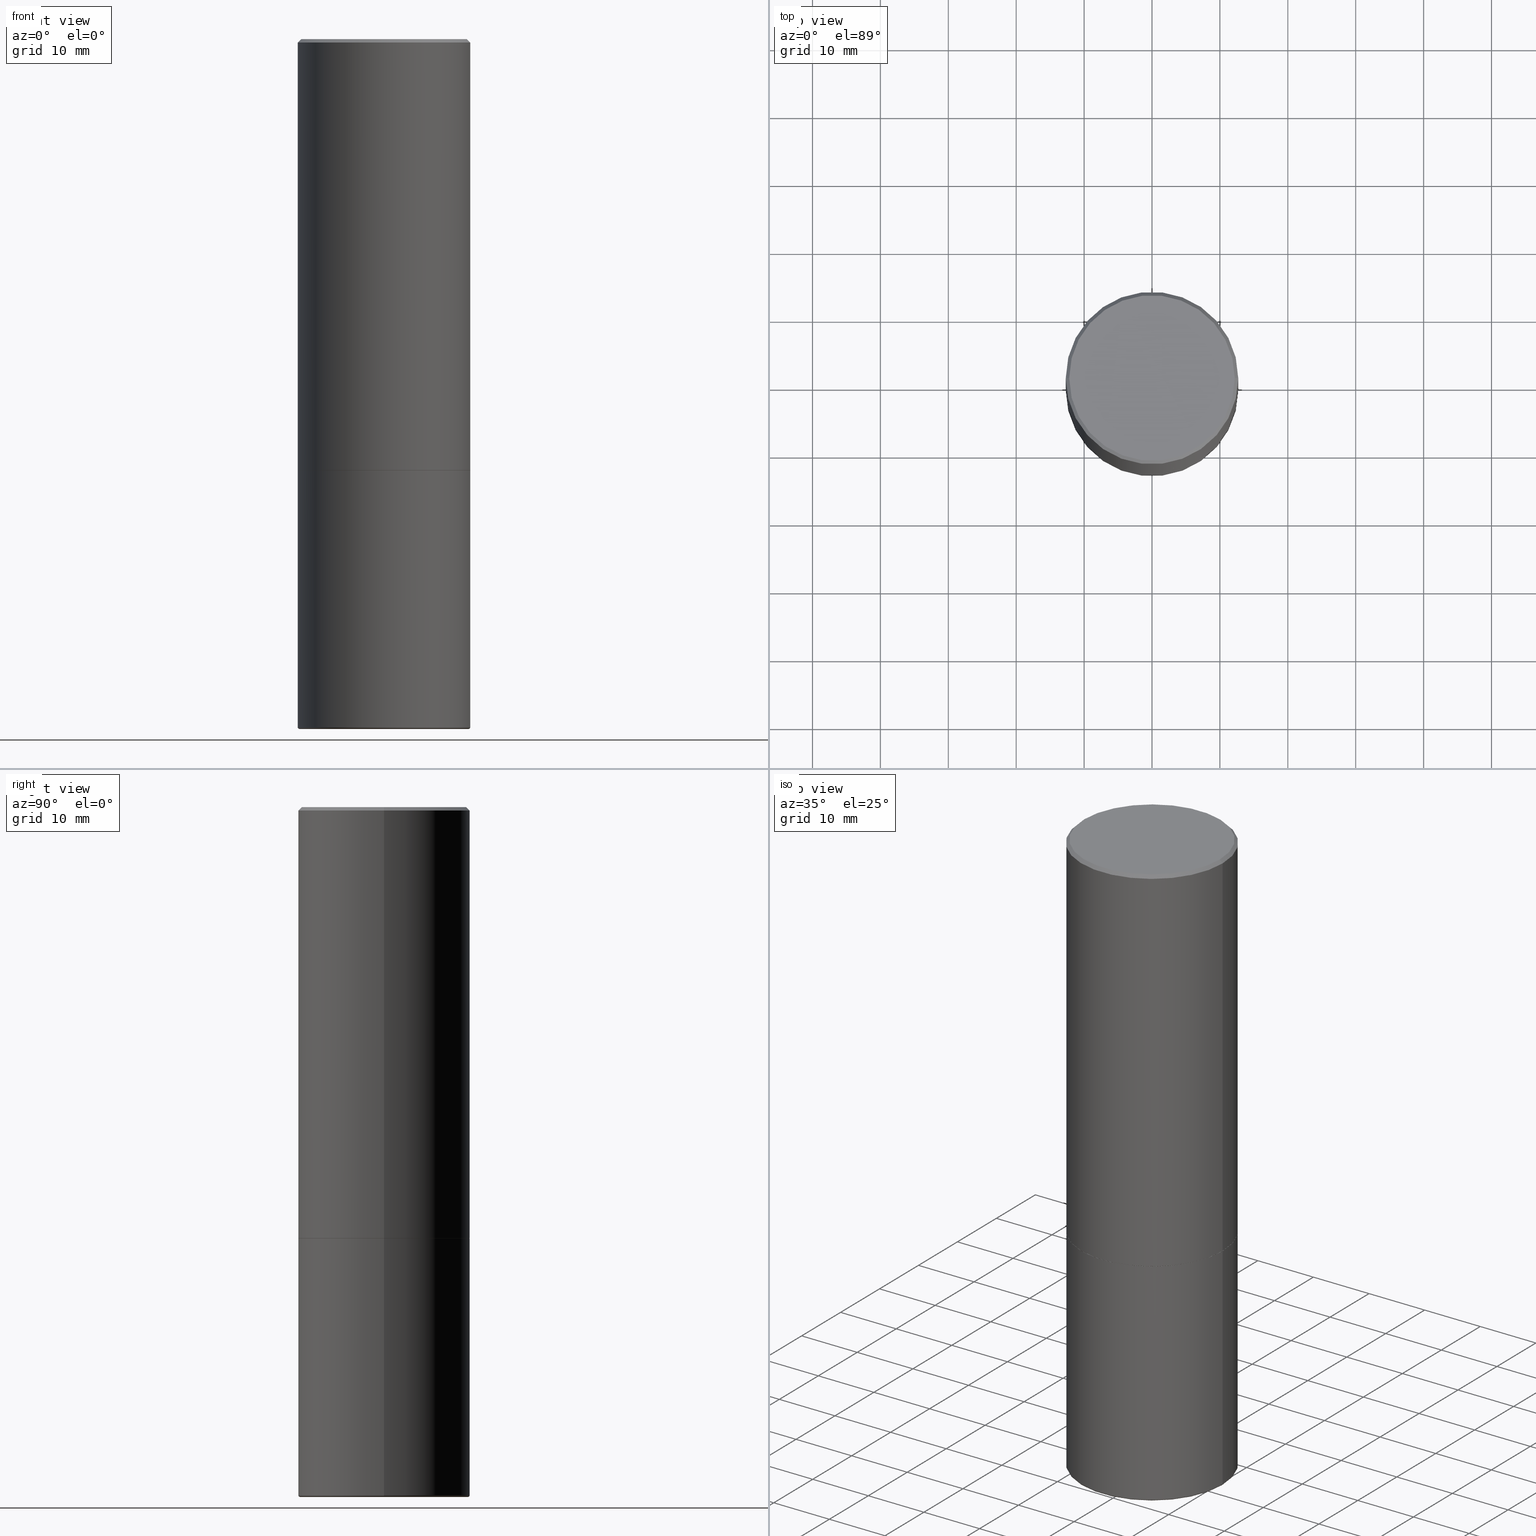
[diagram: canonical four-view strip — front | top / right | iso, engineering-drawing reading convention]
A machine part, canonical four-view strip (front | top / right | iso — engineering-drawing reading convention). The complete STEP part file that produces these views, byte-faithful:
ISO-10303-21;
HEADER;
FILE_DESCRIPTION (( 'STEP AP203' ),
    '1' );
FILE_NAME ('38877.STEP',
    '2024-03-03T18:56:23',
    ( '' ),
    ( '' ),
    'SwSTEP 2.0',
    'SolidWorks 2023',
    '' );
FILE_SCHEMA (( 'CONFIG_CONTROL_DESIGN' ));
ENDSEC;

DATA;
#1 = AXIS2_PLACEMENT_3D ( 'NONE', #294, #365, #237 ) ;
#2 = ORIENTED_EDGE ( 'NONE', *, *, #326, .F. ) ;
#3 = APPROVAL_PERSON_ORGANIZATION ( #235, #347, #48 ) ;
#4 = ADVANCED_FACE ( 'NONE', ( #391 ), #227, .T. ) ;
#5 = CONICAL_SURFACE ( 'NONE', #375, 0.4989999999999999991, 0.7853981633976873100 ) ;
#6 = EDGE_CURVE ( 'NONE', #279, #394, #230, .T. ) ;
#7 = EDGE_LOOP ( 'NONE', ( #191, #389, #343, #168 ) ) ;
#8 = ADVANCED_FACE ( 'NONE', ( #122 ), #247, .T. ) ;
#9 = DIRECTION ( 'NONE',  ( -2.445468806185136597E-29, 3.491481338843145583E-15, 1.000000000000000000 ) ) ;
#10 = VERTEX_POINT ( 'NONE', #80 ) ;
#11 = CC_DESIGN_PERSON_AND_ORGANIZATION_ASSIGNMENT ( #151, #306, ( #340 ) ) ;
#12 = CARTESIAN_POINT ( 'NONE',  ( 6.113672015462842613E-29, -8.728703347107864943E-15, -2.500000000000000000 ) ) ;
#13 = ORIENTED_EDGE ( 'NONE', *, *, #21, .T. ) ;
#14 = AXIS2_PLACEMENT_3D ( 'NONE', #216, #234, #251 ) ;
#15 = APPROVAL_PERSON_ORGANIZATION ( #378, #173, #349 ) ;
#16 = CC_DESIGN_PERSON_AND_ORGANIZATION_ASSIGNMENT ( #159, #322, ( #196 ) ) ;
#17 = EDGE_CURVE ( 'NONE', #279, #297, #94, .T. ) ;
#18 = DIRECTION ( 'NONE',  ( -2.445468806185136597E-29, 3.491481338843145583E-15, 1.000000000000000000 ) ) ;
#19 = CARTESIAN_POINT ( 'NONE',  ( 6.113672015462842613E-29, -8.728703347107864943E-15, -2.500000000000000000 ) ) ;
#20 = DIRECTION ( 'NONE',  ( -2.445468806185136597E-29, 3.491481338843145583E-15, 1.000000000000000000 ) ) ;
#21 = EDGE_CURVE ( 'NONE', #164, #284, #371, .T. ) ;
#22 = CARTESIAN_POINT ( 'NONE',  ( 0.5000000000000001110, -3.500078625662629868E-15, -0.02000000000000010797 ) ) ;
#23 = PERSON_AND_ORGANIZATION ( #290, #92 ) ;
#24 = CARTESIAN_POINT ( 'NONE',  ( 0.5000000000000002220, -1.221669320461215845E-14, -2.499000000000000110 ) ) ;
#25 = DIRECTION ( 'NONE',  ( -0.7071067811867165487, 7.493145998870964739E-15, 0.7071067811863784858 ) ) ;
#26 = CARTESIAN_POINT ( 'NONE',  ( 0.4989999999999999991, -1.221320172327331228E-14, -2.500000000000000000 ) ) ;
#27 = ADVANCED_FACE ( 'NONE', ( #335 ), #50, .T. ) ;
#28 = DIRECTION ( 'NONE',  ( 0.7071067811865447972, -7.319954787623245001E-15, -0.7071067811865501263 ) ) ;
#29 = COORDINATED_UNIVERSAL_TIME_OFFSET ( 5, 0, .BEHIND. ) ;
#30 = PLANE ( 'NONE',  #388 ) ;
#31 = CARTESIAN_POINT ( 'NONE',  ( 0.5000000000000001110, -3.500078625662629868E-15, -0.02000000000000010797 ) ) ;
#32 = TOROIDAL_SURFACE ( 'NONE', #1, 0.4899999999999999911, 0.01000000000000009909 ) ;
#33 = DIRECTION ( 'NONE',  ( -2.445468806185136597E-29, 3.491481338843145583E-15, 1.000000000000000000 ) ) ;
#34 = ORIENTED_EDGE ( 'NONE', *, *, #413, .T. ) ;
#35 = CLOSED_SHELL ( 'NONE', ( #83, #4, #261, #27, #268, #123, #129, #244 ) ) ;
#36 = AXIS2_PLACEMENT_3D ( 'NONE', #120, #141, #360 ) ;
#37 = EDGE_LOOP ( 'NONE', ( #2, #128, #254, #68 ) ) ;
#38 = ORIENTED_EDGE ( 'NONE', *, *, #39, .T. ) ;
#39 = EDGE_CURVE ( 'NONE', #73, #164, #101, .T. ) ;
#40 = CC_DESIGN_DATE_AND_TIME_ASSIGNMENT ( #127, #253, ( #256 ) ) ;
#41 = CARTESIAN_POINT ( 'NONE',  ( 0.4989999999999999991, -1.221320172327331228E-14, -2.500000000000000000 ) ) ;
#42 = EDGE_CURVE ( 'NONE', #319, #286, #387, .T. ) ;
#43 = CIRCLE ( 'NONE', #415, 0.5000000000000000000 ) ;
#44 = CARTESIAN_POINT ( 'NONE',  ( 0.4799999999999999267, -3.396558832296482099E-15, 1.750090120941404697E-16 ) ) ;
#45 = ORIENTED_EDGE ( 'NONE', *, *, #56, .F. ) ;
#46 = PERSON_AND_ORGANIZATION ( #290, #92 ) ;
#47 = CARTESIAN_POINT ( 'NONE',  ( 0.000000000000000000, 0.000000000000000000, 0.000000000000000000 ) ) ;
#48 = APPROVAL_ROLE ( '' ) ;
#49 = DIRECTION ( 'NONE',  ( 2.445468806185136597E-29, -3.491481338843145583E-15, -1.000000000000000000 ) ) ;
#50 = CONICAL_SURFACE ( 'NONE', #380, 0.5000000000000001110, 0.7853981633974445042 ) ;
#51 = VECTOR ( 'NONE', #248, 39.37007874015748143 ) ;
#52 = ORIENTED_EDGE ( 'NONE', *, *, #39, .F. ) ;
#53 = CC_DESIGN_APPROVAL ( #347, ( #313 ) ) ;
#54 = DIRECTION ( 'NONE',  ( 1.000000000000000000, -6.982962677686265922E-15, 0.000000000000000000 ) ) ;
#55 = DIRECTION ( 'NONE',  ( -2.445468806185136597E-29, 3.491481338843145583E-15, 1.000000000000000000 ) ) ;
#56 = EDGE_CURVE ( 'NONE', #164, #73, #153, .T. ) ;
#57 = AXIS2_PLACEMENT_3D ( 'NONE', #295, #278, #180 ) ;
#58 = AXIS2_PLACEMENT_3D ( 'NONE', #175, #366, #272 ) ;
#59 = DIRECTION ( 'NONE',  ( 1.000000000000000000, -6.982962677686269077E-15, 0.000000000000000000 ) ) ;
#60 = FACE_OUTER_BOUND ( 'NONE', #197, .T. ) ;
#61 = ORIENTED_EDGE ( 'NONE', *, *, #118, .T. ) ;
#62 = ADVANCED_FACE ( 'NONE', ( #106 ), #228, .T. ) ;
#63 = DIMENSIONAL_EXPONENTS ( 1.000000000000000000, 0.000000000000000000, 0.000000000000000000, 0.000000000000000000, 0.000000000000000000, 0.000000000000000000, 0.000000000000000000 ) ;
#64 = CYLINDRICAL_SURFACE ( 'NONE', #209, 0.5000000000000001110 ) ;
#65 = COORDINATED_UNIVERSAL_TIME_OFFSET ( 5, 0, .BEHIND. ) ;
#66 = VECTOR ( 'NONE', #28, 39.37007874015748854 ) ;
#67 = UNCERTAINTY_MEASURE_WITH_UNIT (LENGTH_MEASURE( 1.000000000000000082E-05 ), #143, 'distance_accuracy_value', 'NONE');
#68 = ORIENTED_EDGE ( 'NONE', *, *, #42, .F. ) ;
#69 = ORIENTED_EDGE ( 'NONE', *, *, #401, .T. ) ;
#70 = DIRECTION ( 'NONE',  ( 1.000000000000000000, -6.982962677686266711E-15, 4.876176775795935793E-29 ) ) ;
#71 = EDGE_CURVE ( 'NONE', #100, #193, #395, .T. ) ;
#72 = EDGE_LOOP ( 'NONE', ( #222, #38 ) ) ;
#73 = VERTEX_POINT ( 'NONE', #44 ) ;
#74 = DIRECTION ( 'NONE',  ( 1.000000000000000000, -6.982962677686266711E-15, 0.000000000000000000 ) ) ;
#75 = ORIENTED_EDGE ( 'NONE', *, *, #138, .F. ) ;
#76 = SHAPE_DEFINITION_REPRESENTATION ( #377, #111 ) ;
#77 = CARTESIAN_POINT ( 'NONE',  ( -0.5000000000000000000, 3.552713678800500929E-15, -2.459467545127452891E-29 ) ) ;
#78 = FACE_OUTER_BOUND ( 'NONE', #72, .T. ) ;
#79 = CIRCLE ( 'NONE', #102, 0.5000000000000001110 ) ;
#80 = CARTESIAN_POINT ( 'NONE',  ( 0.5000000000000000000, -1.742249188082728404E-14, -3.989999999999999769 ) ) ;
#81 = DIRECTION ( 'NONE',  ( -2.445468806185136597E-29, 3.491481338843145583E-15, 1.000000000000000000 ) ) ;
#82 = LOCAL_TIME ( 13, 56, 23.00000000000000000, #29 ) ;
#83 = ADVANCED_FACE ( 'NONE', ( #296 ), #170, .T. ) ;
#84 = DIRECTION ( 'NONE',  ( 1.000000000000000000, -6.982962677686265922E-15, 0.000000000000000000 ) ) ;
#85 = DIRECTION ( 'NONE',  ( 1.000000000000000000, -6.982962677686262766E-15, 0.000000000000000000 ) ) ;
#86 = CC_DESIGN_DATE_AND_TIME_ASSIGNMENT ( #110, #397, ( #313 ) ) ;
#87 = DIRECTION ( 'NONE',  ( 2.438088387897960049E-29, -3.491481338843145188E-15, -1.000000000000000000 ) ) ;
#88 = DIRECTION ( 'NONE',  ( -2.445468806185136597E-29, 3.491481338843145583E-15, 1.000000000000000000 ) ) ;
#89 = DIRECTION ( 'NONE',  ( -2.445468806185136597E-29, 3.491481338843145583E-15, 1.000000000000000000 ) ) ;
#90 = DIRECTION ( 'NONE',  ( -2.445468806185136597E-29, 3.491481338843145583E-15, 1.000000000000000000 ) ) ;
#91 = AXIS2_PLACEMENT_3D ( 'NONE', #182, #18, #59 ) ;
#92 = ORGANIZATION ( 'UNSPECIFIED', 'UNSPECIFIED', '' ) ;
#93 = MANIFOLD_SOLID_BREP ( 'Body-Move/Copy2[2]', #35 ) ;
#94 = LINE ( 'NONE', #215, #207 ) ;
#95 = APPROVAL_STATUS ( 'not_yet_approved' ) ;
#96 = EDGE_LOOP ( 'NONE', ( #221, #384, #131, #75 ) ) ;
#97 = EDGE_LOOP ( 'NONE', ( #52, #265, #61, #160 ) ) ;
#98 = AXIS2_PLACEMENT_3D ( 'NONE', #393, #9, #105 ) ;
#99 = EDGE_CURVE ( 'NONE', #320, #205, #195, .T. ) ;
#100 = VERTEX_POINT ( 'NONE', #24 ) ;
#101 = CIRCLE ( 'NONE', #298, 0.4799999999999999267 ) ;
#102 = AXIS2_PLACEMENT_3D ( 'NONE', #179, #242, #275 ) ;
#103 = ORIENTED_EDGE ( 'NONE', *, *, #386, .T. ) ;
#104 = CALENDAR_DATE ( 2024, 3, 3 ) ;
#105 = DIRECTION ( 'NONE',  ( 1.000000000000000000, -6.982962677686266711E-15, 0.000000000000000000 ) ) ;
#106 = FACE_OUTER_BOUND ( 'NONE', #37, .T. ) ;
#107 = EDGE_CURVE ( 'NONE', #205, #10, #259, .T. ) ;
#108 = ORIENTED_EDGE ( 'NONE', *, *, #118, .F. ) ;
#109 = CARTESIAN_POINT ( 'NONE',  ( -0.5000000000000000000, -7.777143265745505305E-15, -2.500000000000000000 ) ) ;
#110 = DATE_AND_TIME ( #104, #224 ) ;
#111 = ADVANCED_BREP_SHAPE_REPRESENTATION ( '38877', ( #225, #93, #310 ), #255 ) ;
#112 = CARTESIAN_POINT ( 'NONE',  ( -0.5000000000000002220, -8.448070674724393209E-16, -2.499000000000000110 ) ) ;
#113 = CARTESIAN_POINT ( 'NONE',  ( 0.000000000000000000, 0.000000000000000000, 0.000000000000000000 ) ) ;
#114 = CARTESIAN_POINT ( 'NONE',  ( 0.5000000000000000000, -1.222018468595099830E-14, -2.500000000000000000 ) ) ;
#115 = PLANE ( 'NONE',  #188 ) ;
#116 = AXIS2_PLACEMENT_3D ( 'NONE', #301, #249, #328 ) ;
#117 = CC_DESIGN_SECURITY_CLASSIFICATION ( #313, ( #196 ) ) ;
#118 = EDGE_CURVE ( 'NONE', #193, #284, #79, .T. ) ;
#119 = APPROVAL_STATUS ( 'not_yet_approved' ) ;
#120 = CARTESIAN_POINT ( 'NONE',  ( 6.111226546656657010E-29, -8.725211865769021935E-15, -2.499000000000000110 ) ) ;
#121 = CARTESIAN_POINT ( 'NONE',  ( 0.4899999999999999911, -1.738757706743885081E-14, -4.000000000000000000 ) ) ;
#122 = FACE_OUTER_BOUND ( 'NONE', #358, .T. ) ;
#123 = ADVANCED_FACE ( 'NONE', ( #307 ), #5, .T. ) ;
#124 = FACE_OUTER_BOUND ( 'NONE', #229, .T. ) ;
#125 = CARTESIAN_POINT ( 'NONE',  ( -0.5000000000000001110, 3.421651712066270452E-15, -0.02000000000000010797 ) ) ;
#126 = CIRCLE ( 'NONE', #91, 0.5000000000000000000 ) ;
#127 = DATE_AND_TIME ( #416, #135 ) ;
#128 = ORIENTED_EDGE ( 'NONE', *, *, #353, .T. ) ;
#129 = ADVANCED_FACE ( 'NONE', ( #124 ), #334, .F. ) ;
#130 = DATE_AND_TIME ( #285, #398 ) ;
#131 = ORIENTED_EDGE ( 'NONE', *, *, #381, .T. ) ;
#132 = DIRECTION ( 'NONE',  ( -2.445468806185136597E-29, 3.491481338843145583E-15, 1.000000000000000000 ) ) ;
#133 = ORIENTED_EDGE ( 'NONE', *, *, #381, .F. ) ;
#134 = AXIS2_PLACEMENT_3D ( 'NONE', #403, #315, #206 ) ;
#135 = LOCAL_TIME ( 13, 56, 23.00000000000000000, #281 ) ;
#136 = ORIENTED_EDGE ( 'NONE', *, *, #157, .T. ) ;
#137 = DIRECTION ( 'NONE',  ( -2.445468806185136877E-29, 3.491481338843145188E-15, 1.000000000000000000 ) ) ;
#138 = EDGE_CURVE ( 'NONE', #297, #100, #231, .T. ) ;
#139 = DIRECTION ( 'NONE',  ( -1.000000000000000000, 6.982962677686265922E-15, 0.000000000000000000 ) ) ;
#140 = FACE_OUTER_BOUND ( 'NONE', #7, .T. ) ;
#141 = DIRECTION ( 'NONE',  ( -2.445468806185136597E-29, 3.491481338843145583E-15, 1.000000000000000000 ) ) ;
#142 = DIRECTION ( 'NONE',  ( 1.000000000000000000, -6.982962677686266711E-15, 4.878011538933550964E-29 ) ) ;
#143 =( CONVERSION_BASED_UNIT ( 'INCH', #373 ) LENGTH_UNIT ( ) NAMED_UNIT ( #63 ) );
#144 = DIRECTION ( 'NONE',  ( -2.445468806185136597E-29, 3.491481338843145583E-15, 1.000000000000000000 ) ) ;
#145 = CONICAL_SURFACE ( 'NONE', #317, 0.5000000000000001110, 0.7853981633974445042 ) ;
#146 = DIRECTION ( 'NONE',  ( 1.000000000000000000, -6.982962677686269077E-15, 0.000000000000000000 ) ) ;
#147 = DATE_AND_TIME ( #276, #82 ) ;
#148 = FACE_OUTER_BOUND ( 'NONE', #292, .T. ) ;
#149 = DIRECTION ( 'NONE',  ( 1.000000000000000000, -6.982962677686266711E-15, 4.876176775795935793E-29 ) ) ;
#150 = DIRECTION ( 'NONE',  ( -2.445468806185136877E-29, 3.491481338843145188E-15, 1.000000000000000000 ) ) ;
#151 = PERSON_AND_ORGANIZATION ( #290, #92 ) ;
#152 = CARTESIAN_POINT ( 'NONE',  ( 0.000000000000000000, 0.000000000000000000, 0.000000000000000000 ) ) ;
#153 = CIRCLE ( 'NONE', #346, 0.4799999999999999267 ) ;
#154 = AXIS2_PLACEMENT_3D ( 'NONE', #12, #232, #257 ) ;
#155 =( NAMED_UNIT ( * ) SI_UNIT ( $, .STERADIAN. ) SOLID_ANGLE_UNIT ( ) );
#156 = ORIENTED_EDGE ( 'NONE', *, *, #71, .T. ) ;
#157 = EDGE_CURVE ( 'NONE', #286, #319, #126, .T. ) ;
#158 = ORIENTED_EDGE ( 'NONE', *, *, #238, .F. ) ;
#159 = PERSON_AND_ORGANIZATION ( #290, #92 ) ;
#160 = ORIENTED_EDGE ( 'NONE', *, *, #21, .F. ) ;
#161 = ORIENTED_EDGE ( 'NONE', *, *, #409, .T. ) ;
#162 = ORIENTED_EDGE ( 'NONE', *, *, #71, .F. ) ;
#163 = ADVANCED_FACE ( 'NONE', ( #246 ), #30, .F. ) ;
#164 = VERTEX_POINT ( 'NONE', #212 ) ;
#165 = VECTOR ( 'NONE', #354, 39.37007874015748143 ) ;
#166 = EDGE_CURVE ( 'NONE', #10, #355, #43, .T. ) ;
#167 = CARTESIAN_POINT ( 'NONE',  ( -0.5000000000000001110, 3.552713678800501718E-15, -2.459467545127453732E-29 ) ) ;
#168 = ORIENTED_EDGE ( 'NONE', *, *, #107, .F. ) ;
#169 = COORDINATED_UNIVERSAL_TIME_OFFSET ( 5, 0, .BEHIND. ) ;
#170 = CONICAL_SURFACE ( 'NONE', #154, 0.4989999999999999991, 0.7853981633976873100 ) ;
#171 = FACE_OUTER_BOUND ( 'NONE', #97, .T. ) ;
#172 = ORIENTED_EDGE ( 'NONE', *, *, #326, .T. ) ;
#173 = APPROVAL ( #95, 'UNSPECIFIED' ) ;
#174 = DIRECTION ( 'NONE',  ( -1.000000000000000000, 7.105427357601049190E-15, 0.000000000000000000 ) ) ;
#175 = CARTESIAN_POINT ( 'NONE',  ( 6.113672015462842613E-29, -8.728703347107864943E-15, -2.500000000000000000 ) ) ;
#176 = DIRECTION ( 'NONE',  ( 2.445468806185136597E-29, -3.491481338843145583E-15, -1.000000000000000000 ) ) ;
#177 = EDGE_LOOP ( 'NONE', ( #161, #220, #239, #133 ) ) ;
#178 = DIRECTION ( 'NONE',  ( 1.000000000000000000, 0.000000000000000000, 0.000000000000000000 ) ) ;
#179 = CARTESIAN_POINT ( 'NONE',  ( 4.890937612370299433E-31, -6.982962677686328587E-17, -0.02000000000000010797 ) ) ;
#180 = DIRECTION ( 'NONE',  ( 1.000000000000000000, -6.982962677686266711E-15, 0.000000000000000000 ) ) ;
#181 = CARTESIAN_POINT ( 'NONE',  ( -0.5000000000000000000, -1.037829686318364817E-14, -3.989999999999999769 ) ) ;
#182 = CARTESIAN_POINT ( 'NONE',  ( 6.113672015462842613E-29, -8.728703347107864943E-15, -2.500000000000000000 ) ) ;
#183 = CIRCLE ( 'NONE', #339, 0.5000000000000002220 ) ;
#184 = ADVANCED_FACE ( 'NONE', ( #148 ), #263, .T. ) ;
#185 = DIRECTION ( 'NONE',  ( -1.000000000000000000, 6.982962677686265922E-15, -4.876176775795935793E-29 ) ) ;
#186 = ORIENTED_EDGE ( 'NONE', *, *, #189, .F. ) ;
#187 = APPLICATION_CONTEXT ( 'configuration controlled 3d designs of mechanical parts and assemblies' ) ;
#188 = AXIS2_PLACEMENT_3D ( 'NONE', #303, #250, #214 ) ;
#189 = EDGE_CURVE ( 'NONE', #205, #320, #357, .T. ) ;
#190 = DIRECTION ( 'NONE',  ( 1.000000000000000000, -6.982962677686267499E-15, 4.876176775795935793E-29 ) ) ;
#191 = ORIENTED_EDGE ( 'NONE', *, *, #189, .T. ) ;
#192 = APPROVAL_DATE_TIME ( #130, #173 ) ;
#193 = VERTEX_POINT ( 'NONE', #31 ) ;
#194 = VECTOR ( 'NONE', #210, 39.37007874015748854 ) ;
#195 = CIRCLE ( 'NONE', #282, 0.4899999999999999911 ) ;
#196 = PRODUCT_DEFINITION_FORMATION_WITH_SPECIFIED_SOURCE ( 'ANY', '', #340, .NOT_KNOWN. ) ;
#197 = EDGE_LOOP ( 'NONE', ( #417, #260, #156, #330 ) ) ;
#198 = APPROVAL ( #119, 'UNSPECIFIED' ) ;
#199 = DIRECTION ( 'NONE',  ( -2.445468806185136597E-29, 3.491481338843145583E-15, 1.000000000000000000 ) ) ;
#200 = PERSON_AND_ORGANIZATION_ROLE ( 'classification_officer' ) ;
#201 = PRODUCT_RELATED_PRODUCT_CATEGORY ( 'detail', '', ( #340 ) ) ;
#202 = CARTESIAN_POINT ( 'NONE',  ( 0.5000000000000001110, -3.491481338843134539E-15, 2.438088387897968457E-29 ) ) ;
#203 = ORIENTED_EDGE ( 'NONE', *, *, #409, .F. ) ;
#204 = CARTESIAN_POINT ( 'NONE',  ( 4.890937612370299433E-31, -6.982962677686328587E-17, -0.02000000000000010797 ) ) ;
#205 = VERTEX_POINT ( 'NONE', #121 ) ;
#206 = DIRECTION ( 'NONE',  ( 1.000000000000000000, -6.982962677686265922E-15, 0.000000000000000000 ) ) ;
#207 = VECTOR ( 'NONE', #25, 39.37007874015748143 ) ;
#208 = CARTESIAN_POINT ( 'NONE',  ( -0.4899999999999999911, -1.044935113675965826E-14, -3.989999999999999769 ) ) ;
#209 = AXIS2_PLACEMENT_3D ( 'NONE', #152, #33, #190 ) ;
#210 = DIRECTION ( 'NONE',  ( -0.7071067811865447972, 2.468850131082228662E-15, -0.7071067811865501263 ) ) ;
#211 = DIRECTION ( 'NONE',  ( 1.000000000000000000, -6.982962677686269866E-15, 0.000000000000000000 ) ) ;
#212 = CARTESIAN_POINT ( 'NONE',  ( -0.4799999999999999267, 3.386736898677839197E-15, 1.750090120940932860E-16 ) ) ;
#213 = DIRECTION ( 'NONE',  ( 1.000000000000000000, -6.982962677686266711E-15, 4.878011538933550964E-29 ) ) ;
#214 = DIRECTION ( 'NONE',  ( -1.000000000000000000, 6.982962677686265922E-15, -4.876176775795935793E-29 ) ) ;
#215 = CARTESIAN_POINT ( 'NONE',  ( -0.4989999999999999991, -5.183095095664965021E-15, -2.500000000000000000 ) ) ;
#216 = CARTESIAN_POINT ( 'NONE',  ( 9.757420536678694842E-29, -1.393101054198414910E-14, -3.989999999999999769 ) ) ;
#217 = CARTESIAN_POINT ( 'NONE',  ( 4.890937612370299433E-31, -6.982962677686328587E-17, -0.02000000000000010797 ) ) ;
#218 = ORIENTED_EDGE ( 'NONE', *, *, #42, .T. ) ;
#219 = AXIS2_PLACEMENT_3D ( 'NONE', #204, #267, #84 ) ;
#220 = ORIENTED_EDGE ( 'NONE', *, *, #17, .T. ) ;
#221 = ORIENTED_EDGE ( 'NONE', *, *, #17, .F. ) ;
#222 = ORIENTED_EDGE ( 'NONE', *, *, #56, .T. ) ;
#223 = CIRCLE ( 'NONE', #14, 0.5000000000000000000 ) ;
#224 = LOCAL_TIME ( 13, 56, 23.00000000000000000, #400 ) ;
#225 = MANIFOLD_SOLID_BREP ( 'Body-Move/Copy2[1]', #350 ) ;
#226 = ORIENTED_EDGE ( 'NONE', *, *, #6, .F. ) ;
#227 = CYLINDRICAL_SURFACE ( 'NONE', #414, 0.5000000000000001110 ) ;
#228 = CYLINDRICAL_SURFACE ( 'NONE', #289, 0.5000000000000000000 ) ;
#229 = EDGE_LOOP ( 'NONE', ( #203, #226 ) ) ;
#230 = CIRCLE ( 'NONE', #57, 0.4989999999999999991 ) ;
#231 = CIRCLE ( 'NONE', #36, 0.5000000000000002220 ) ;
#232 = DIRECTION ( 'NONE',  ( -2.445468806185136597E-29, 3.491481338843145583E-15, 1.000000000000000000 ) ) ;
#233 = ORIENTED_EDGE ( 'NONE', *, *, #345, .F. ) ;
#234 = DIRECTION ( 'NONE',  ( -2.445468806185136597E-29, 3.491481338843145583E-15, 1.000000000000000000 ) ) ;
#235 = PERSON_AND_ORGANIZATION ( #290, #92 ) ;
#236 = CARTESIAN_POINT ( 'NONE',  ( -0.4899999999999999911, -1.043128140666586904E-14, -4.000000000000000000 ) ) ;
#237 = DIRECTION ( 'NONE',  ( 1.000000000000000000, -6.982962677686265922E-15, 4.883557194083112340E-29 ) ) ;
#238 = EDGE_CURVE ( 'NONE', #10, #286, #266, .T. ) ;
#239 = ORIENTED_EDGE ( 'NONE', *, *, #386, .F. ) ;
#240 = APPROVAL_DATE_TIME ( #362, #347 ) ;
#241 = LINE ( 'NONE', #77, #293 ) ;
#242 = DIRECTION ( 'NONE',  ( -2.445468806185136597E-29, 3.491481338843145583E-15, 1.000000000000000000 ) ) ;
#243 = CIRCLE ( 'NONE', #219, 0.5000000000000001110 ) ;
#244 = ADVANCED_FACE ( 'NONE', ( #78 ), #115, .F. ) ;
#245 = MECHANICAL_CONTEXT ( 'NONE', #368, 'mechanical' ) ;
#246 = FACE_OUTER_BOUND ( 'NONE', #352, .T. ) ;
#247 = CYLINDRICAL_SURFACE ( 'NONE', #338, 0.5000000000000000000 ) ;
#248 = DIRECTION ( 'NONE',  ( 0.7071067811867165487, -2.468850131084027659E-15, 0.7071067811863784858 ) ) ;
#249 = DIRECTION ( 'NONE',  ( 2.438088387897960049E-29, -3.491481338843145188E-15, -1.000000000000000000 ) ) ;
#250 = DIRECTION ( 'NONE',  ( 2.438088387897960049E-29, -3.491481338843145188E-15, -1.000000000000000000 ) ) ;
#251 = DIRECTION ( 'NONE',  ( 1.000000000000000000, -6.982962677686266711E-15, 0.000000000000000000 ) ) ;
#252 = AXIS2_PLACEMENT_3D ( 'NONE', #412, #407, #85 ) ;
#253 = DATE_TIME_ROLE ( 'creation_date' ) ;
#254 = ORIENTED_EDGE ( 'NONE', *, *, #238, .T. ) ;
#255 =( GEOMETRIC_REPRESENTATION_CONTEXT ( 3 ) GLOBAL_UNCERTAINTY_ASSIGNED_CONTEXT ( ( #67 ) ) GLOBAL_UNIT_ASSIGNED_CONTEXT ( ( #143, #336, #155 ) ) REPRESENTATION_CONTEXT ( 'NONE', 'WORKASPACE' ) );
#256 = PRODUCT_DEFINITION ( 'UNKNOWN', '', #196, #408 ) ;
#257 = DIRECTION ( 'NONE',  ( 1.000000000000000000, -6.982962677686266711E-15, 0.000000000000000000 ) ) ;
#258 = EDGE_LOOP ( 'NONE', ( #186, #382 ) ) ;
#259 = CIRCLE ( 'NONE', #252, 0.01000000000000009909 ) ;
#260 = ORIENTED_EDGE ( 'NONE', *, *, #138, .T. ) ;
#261 = ADVANCED_FACE ( 'NONE', ( #171 ), #145, .T. ) ;
#262 = ORIENTED_EDGE ( 'NONE', *, *, #287, .F. ) ;
#263 = TOROIDAL_SURFACE ( 'NONE', #300, 0.4899999999999999911, 0.01000000000000009909 ) ;
#264 = CC_DESIGN_APPROVAL ( #173, ( #196 ) ) ;
#265 = ORIENTED_EDGE ( 'NONE', *, *, #287, .T. ) ;
#266 = LINE ( 'NONE', #329, #351 ) ;
#267 = DIRECTION ( 'NONE',  ( -2.445468806185136597E-29, 3.491481338843145583E-15, 1.000000000000000000 ) ) ;
#268 = ADVANCED_FACE ( 'NONE', ( #60 ), #64, .T. ) ;
#269 = PLANE ( 'NONE',  #116 ) ;
#270 = CIRCLE ( 'NONE', #98, 0.4989999999999999991 ) ;
#271 = DIRECTION ( 'NONE',  ( 0.000000000000000000, 0.000000000000000000, 1.000000000000000000 ) ) ;
#272 = DIRECTION ( 'NONE',  ( 1.000000000000000000, -6.982962677686265922E-15, 4.876176775795935793E-29 ) ) ;
#273 = CARTESIAN_POINT ( 'NONE',  ( -4.279790798774401163E-45, 6.110406998559833931E-31, 1.750090120941168532E-16 ) ) ;
#274 = APPROVAL_DATE_TIME ( #147, #198 ) ;
#275 = DIRECTION ( 'NONE',  ( 1.000000000000000000, -6.982962677686265922E-15, 0.000000000000000000 ) ) ;
#276 = CALENDAR_DATE ( 2024, 3, 3 ) ;
#277 = CARTESIAN_POINT ( 'NONE',  ( 4.890937612370299433E-31, -6.982962677686328587E-17, -0.02000000000000010797 ) ) ;
#278 = DIRECTION ( 'NONE',  ( -2.445468806185136597E-29, 3.491481338843145583E-15, 1.000000000000000000 ) ) ;
#279 = VERTEX_POINT ( 'NONE', #392 ) ;
#280 = CC_DESIGN_PERSON_AND_ORGANIZATION_ASSIGNMENT ( #46, #200, ( #313 ) ) ;
#281 = COORDINATED_UNIVERSAL_TIME_OFFSET ( 5, 0, .BEHIND. ) ;
#282 = AXIS2_PLACEMENT_3D ( 'NONE', #341, #89, #54 ) ;
#283 = APPLICATION_PROTOCOL_DEFINITION ( 'international standard', 'config_control_design', 1994, #368 ) ;
#284 = VERTEX_POINT ( 'NONE', #305 ) ;
#285 = CALENDAR_DATE ( 2024, 3, 3 ) ;
#286 = VERTEX_POINT ( 'NONE', #114 ) ;
#287 = EDGE_CURVE ( 'NONE', #73, #193, #309, .T. ) ;
#288 = ORIENTED_EDGE ( 'NONE', *, *, #99, .T. ) ;
#289 = AXIS2_PLACEMENT_3D ( 'NONE', #47, #132, #70 ) ;
#290 = PERSON ( 'UNSPECIFIED', 'UNSPECIFIED', 'UNSPECIFIED', ('UNSPECIFIED'), ('UNSPECIFIED'), ('UNSPECIFIED') ) ;
#291 = SECURITY_CLASSIFICATION_LEVEL ( 'unclassified' ) ;
#292 = EDGE_LOOP ( 'NONE', ( #233, #288, #361, #396 ) ) ;
#293 = VECTOR ( 'NONE', #363, 39.37007874015748143 ) ;
#294 = CARTESIAN_POINT ( 'NONE',  ( 9.757420536678694842E-29, -1.393101054198414910E-14, -3.989999999999999769 ) ) ;
#295 = CARTESIAN_POINT ( 'NONE',  ( 6.113672015462842613E-29, -8.728703347107864943E-15, -2.500000000000000000 ) ) ;
#296 = FACE_OUTER_BOUND ( 'NONE', #177, .T. ) ;
#297 = VERTEX_POINT ( 'NONE', #112 ) ;
#298 = AXIS2_PLACEMENT_3D ( 'NONE', #367, #20, #142 ) ;
#299 = CALENDAR_DATE ( 2024, 3, 3 ) ;
#300 = AXIS2_PLACEMENT_3D ( 'NONE', #312, #411, #364 ) ;
#301 = CARTESIAN_POINT ( 'NONE',  ( 9.781875224740546387E-29, -1.396592535537258233E-14, -4.000000000000000000 ) ) ;
#302 = DIRECTION ( 'NONE',  ( 1.000000000000000000, -6.982962677686266711E-15, 0.000000000000000000 ) ) ;
#303 = CARTESIAN_POINT ( 'NONE',  ( 3.351822085289407153E-15, 0.4799999999999999267, -1.588406536597651338E-15 ) ) ;
#304 = DIRECTION ( 'NONE',  ( -1.000000000000000000, 6.982962677686265922E-15, 0.000000000000000000 ) ) ;
#305 = CARTESIAN_POINT ( 'NONE',  ( -0.5000000000000001110, 3.421651712066270452E-15, -0.02000000000000010797 ) ) ;
#306 = PERSON_AND_ORGANIZATION_ROLE ( 'design_owner' ) ;
#307 = FACE_OUTER_BOUND ( 'NONE', #96, .T. ) ;
#308 = LINE ( 'NONE', #26, #51 ) ;
#309 = LINE ( 'NONE', #22, #66 ) ;
#310 = AXIS2_PLACEMENT_3D ( 'NONE', #379, #271, #178 ) ;
#311 = APPLICATION_PROTOCOL_DEFINITION ( 'international standard', 'config_control_design', 1994, #187 ) ;
#312 = CARTESIAN_POINT ( 'NONE',  ( 9.757420536678694842E-29, -1.393101054198414910E-14, -3.989999999999999769 ) ) ;
#313 = SECURITY_CLASSIFICATION ( '', '', #291 ) ;
#314 = PERSON_AND_ORGANIZATION_ROLE ( 'creator' ) ;
#315 = DIRECTION ( 'NONE',  ( -2.445468806185136597E-29, 3.491481338843145583E-15, 1.000000000000000000 ) ) ;
#316 = ADVANCED_FACE ( 'NONE', ( #402 ), #269, .T. ) ;
#317 = AXIS2_PLACEMENT_3D ( 'NONE', #277, #49, #139 ) ;
#318 = PERSON_AND_ORGANIZATION ( #290, #92 ) ;
#319 = VERTEX_POINT ( 'NONE', #109 ) ;
#320 = VERTEX_POINT ( 'NONE', #236 ) ;
#321 = AXIS2_PLACEMENT_3D ( 'NONE', #208, #333, #174 ) ;
#322 = PERSON_AND_ORGANIZATION_ROLE ( 'creator' ) ;
#323 = EDGE_LOOP ( 'NONE', ( #262, #45, #13, #69 ) ) ;
#324 = DIRECTION ( 'NONE',  ( 1.000000000000000000, -6.982962677686267499E-15, 4.876176775795935793E-29 ) ) ;
#325 = VECTOR ( 'NONE', #137, 39.37007874015748143 ) ;
#326 = EDGE_CURVE ( 'NONE', #355, #319, #241, .T. ) ;
#327 = APPROVAL_STATUS ( 'not_yet_approved' ) ;
#328 = DIRECTION ( 'NONE',  ( -1.000000000000000000, 6.982962677686265922E-15, -4.876176775795935793E-29 ) ) ;
#329 = CARTESIAN_POINT ( 'NONE',  ( 0.5000000000000000000, -3.491481338843133355E-15, 2.438088387897967896E-29 ) ) ;
#330 = ORIENTED_EDGE ( 'NONE', *, *, #401, .F. ) ;
#331 = AXIS2_PLACEMENT_3D ( 'NONE', #404, #55, #146 ) ;
#332 = PERSON_AND_ORGANIZATION_ROLE ( 'design_supplier' ) ;
#333 = DIRECTION ( 'NONE',  ( 7.105427357601001859E-15, 1.000000000000000000, -3.491481338843145583E-15 ) ) ;
#334 = PLANE ( 'NONE',  #58 ) ;
#335 = FACE_OUTER_BOUND ( 'NONE', #323, .T. ) ;
#336 =( NAMED_UNIT ( * ) PLANE_ANGLE_UNIT ( ) SI_UNIT ( $, .RADIAN. ) );
#337 = DIRECTION ( 'NONE',  ( -2.445468806185136597E-29, 3.491481338843145583E-15, 1.000000000000000000 ) ) ;
#338 = AXIS2_PLACEMENT_3D ( 'NONE', #113, #90, #149 ) ;
#339 = AXIS2_PLACEMENT_3D ( 'NONE', #372, #81, #211 ) ;
#340 = PRODUCT ( '38877', '38877', '', ( #245 ) ) ;
#341 = CARTESIAN_POINT ( 'NONE',  ( 9.781875224740546387E-29, -1.396592535537258233E-14, -4.000000000000000000 ) ) ;
#342 = CC_DESIGN_PERSON_AND_ORGANIZATION_ASSIGNMENT ( #410, #314, ( #256 ) ) ;
#343 = ORIENTED_EDGE ( 'NONE', *, *, #166, .F. ) ;
#344 =( LENGTH_UNIT ( ) NAMED_UNIT ( * ) SI_UNIT ( $, .METRE. ) );
#345 = EDGE_CURVE ( 'NONE', #320, #355, #405, .T. ) ;
#346 = AXIS2_PLACEMENT_3D ( 'NONE', #273, #88, #213 ) ;
#347 = APPROVAL ( #327, 'UNSPECIFIED' ) ;
#348 = ORIENTED_EDGE ( 'NONE', *, *, #166, .T. ) ;
#349 = APPROVAL_ROLE ( '' ) ;
#350 = CLOSED_SHELL ( 'NONE', ( #8, #390, #163, #62, #184, #316 ) ) ;
#351 = VECTOR ( 'NONE', #150, 39.37007874015748143 ) ;
#352 = EDGE_LOOP ( 'NONE', ( #136, #218 ) ) ;
#353 = EDGE_CURVE ( 'NONE', #355, #10, #223, .T. ) ;
#354 = DIRECTION ( 'NONE',  ( -2.445468806185136877E-29, 3.491481338843145188E-15, 1.000000000000000000 ) ) ;
#355 = VERTEX_POINT ( 'NONE', #181 ) ;
#356 = CARTESIAN_POINT ( 'NONE',  ( 0.000000000000000000, 0.000000000000000000, 0.000000000000000000 ) ) ;
#357 = CIRCLE ( 'NONE', #134, 0.4899999999999999911 ) ;
#358 = EDGE_LOOP ( 'NONE', ( #348, #172, #418, #158 ) ) ;
#359 = LINE ( 'NONE', #167, #325 ) ;
#360 = DIRECTION ( 'NONE',  ( 1.000000000000000000, -6.982962677686269866E-15, 0.000000000000000000 ) ) ;
#361 = ORIENTED_EDGE ( 'NONE', *, *, #107, .T. ) ;
#362 = DATE_AND_TIME ( #299, #406 ) ;
#363 = DIRECTION ( 'NONE',  ( -2.445468806185136877E-29, 3.491481338843145188E-15, 1.000000000000000000 ) ) ;
#364 = DIRECTION ( 'NONE',  ( 1.000000000000000000, -6.982962677686265922E-15, 4.883557194083112340E-29 ) ) ;
#365 = DIRECTION ( 'NONE',  ( -2.445468806185136597E-29, 3.491481338843145583E-15, 1.000000000000000000 ) ) ;
#366 = DIRECTION ( 'NONE',  ( -2.438088387897960049E-29, 3.491481338843145188E-15, 1.000000000000000000 ) ) ;
#367 = CARTESIAN_POINT ( 'NONE',  ( -4.279790798774401163E-45, 6.110406998559833931E-31, 1.750090120941168532E-16 ) ) ;
#368 = APPLICATION_CONTEXT ( 'configuration controlled 3d designs of mechanical parts and assemblies' ) ;
#369 = APPROVAL_ROLE ( '' ) ;
#370 = CARTESIAN_POINT ( 'NONE',  ( 6.113672015462842613E-29, -8.728703347107864943E-15, -2.500000000000000000 ) ) ;
#371 = LINE ( 'NONE', #125, #194 ) ;
#372 = CARTESIAN_POINT ( 'NONE',  ( 6.111226546656657010E-29, -8.725211865769021935E-15, -2.499000000000000110 ) ) ;
#373 = LENGTH_MEASURE_WITH_UNIT ( LENGTH_MEASURE( 0.02539999999999999897 ), #344 );
#374 = CARTESIAN_POINT ( 'NONE',  ( 9.757420536678694842E-29, -1.393101054198414910E-14, -3.989999999999999769 ) ) ;
#375 = AXIS2_PLACEMENT_3D ( 'NONE', #19, #144, #302 ) ;
#376 = APPROVAL_PERSON_ORGANIZATION ( #23, #198, #369 ) ;
#377 = PRODUCT_DEFINITION_SHAPE ( 'NONE', 'NONE',  #256 ) ;
#378 = PERSON_AND_ORGANIZATION ( #290, #92 ) ;
#379 = CARTESIAN_POINT ( 'NONE',  ( 0.000000000000000000, 0.000000000000000000, 0.000000000000000000 ) ) ;
#380 = AXIS2_PLACEMENT_3D ( 'NONE', #217, #176, #304 ) ;
#381 = EDGE_CURVE ( 'NONE', #394, #100, #308, .T. ) ;
#382 = ORIENTED_EDGE ( 'NONE', *, *, #99, .F. ) ;
#383 = CC_DESIGN_APPROVAL ( #198, ( #256 ) ) ;
#384 = ORIENTED_EDGE ( 'NONE', *, *, #6, .T. ) ;
#385 = CC_DESIGN_PERSON_AND_ORGANIZATION_ASSIGNMENT ( #318, #332, ( #196 ) ) ;
#386 = EDGE_CURVE ( 'NONE', #100, #297, #183, .T. ) ;
#387 = CIRCLE ( 'NONE', #331, 0.5000000000000000000 ) ;
#388 = AXIS2_PLACEMENT_3D ( 'NONE', #370, #87, #185 ) ;
#389 = ORIENTED_EDGE ( 'NONE', *, *, #345, .T. ) ;
#390 = ADVANCED_FACE ( 'NONE', ( #140 ), #32, .T. ) ;
#391 = FACE_OUTER_BOUND ( 'NONE', #399, .T. ) ;
#392 = CARTESIAN_POINT ( 'NONE',  ( -0.4989999999999999991, -5.177796641316741831E-15, -2.500000000000000000 ) ) ;
#393 = CARTESIAN_POINT ( 'NONE',  ( 6.113672015462842613E-29, -8.728703347107864943E-15, -2.500000000000000000 ) ) ;
#394 = VERTEX_POINT ( 'NONE', #41 ) ;
#395 = LINE ( 'NONE', #202, #165 ) ;
#396 = ORIENTED_EDGE ( 'NONE', *, *, #353, .F. ) ;
#397 = DATE_TIME_ROLE ( 'classification_date' ) ;
#398 = LOCAL_TIME ( 13, 56, 23.00000000000000000, #65 ) ;
#399 = EDGE_LOOP ( 'NONE', ( #103, #34, #108, #162 ) ) ;
#400 = COORDINATED_UNIVERSAL_TIME_OFFSET ( 5, 0, .BEHIND. ) ;
#401 = EDGE_CURVE ( 'NONE', #284, #193, #243, .T. ) ;
#402 = FACE_OUTER_BOUND ( 'NONE', #258, .T. ) ;
#403 = CARTESIAN_POINT ( 'NONE',  ( 9.781875224740546387E-29, -1.396592535537258233E-14, -4.000000000000000000 ) ) ;
#404 = CARTESIAN_POINT ( 'NONE',  ( 6.113672015462842613E-29, -8.728703347107864943E-15, -2.500000000000000000 ) ) ;
#405 = CIRCLE ( 'NONE', #321, 0.01000000000000009909 ) ;
#406 = LOCAL_TIME ( 13, 56, 23.00000000000000000, #169 ) ;
#407 = DIRECTION ( 'NONE',  ( -6.982962677686266711E-15, -1.000000000000000000, 3.491481338843145583E-15 ) ) ;
#408 = DESIGN_CONTEXT ( 'detailed design', #187, 'design' ) ;
#409 = EDGE_CURVE ( 'NONE', #394, #279, #270, .T. ) ;
#410 = PERSON_AND_ORGANIZATION ( #290, #92 ) ;
#411 = DIRECTION ( 'NONE',  ( -2.445468806185136597E-29, 3.491481338843145583E-15, 1.000000000000000000 ) ) ;
#412 = CARTESIAN_POINT ( 'NONE',  ( 0.4899999999999999911, -1.735266225405042074E-14, -3.989999999999999769 ) ) ;
#413 = EDGE_CURVE ( 'NONE', #297, #284, #359, .T. ) ;
#414 = AXIS2_PLACEMENT_3D ( 'NONE', #356, #199, #324 ) ;
#415 = AXIS2_PLACEMENT_3D ( 'NONE', #374, #337, #74 ) ;
#416 = CALENDAR_DATE ( 2024, 3, 3 ) ;
#417 = ORIENTED_EDGE ( 'NONE', *, *, #413, .F. ) ;
#418 = ORIENTED_EDGE ( 'NONE', *, *, #157, .F. ) ;
ENDSEC;
END-ISO-10303-21;
